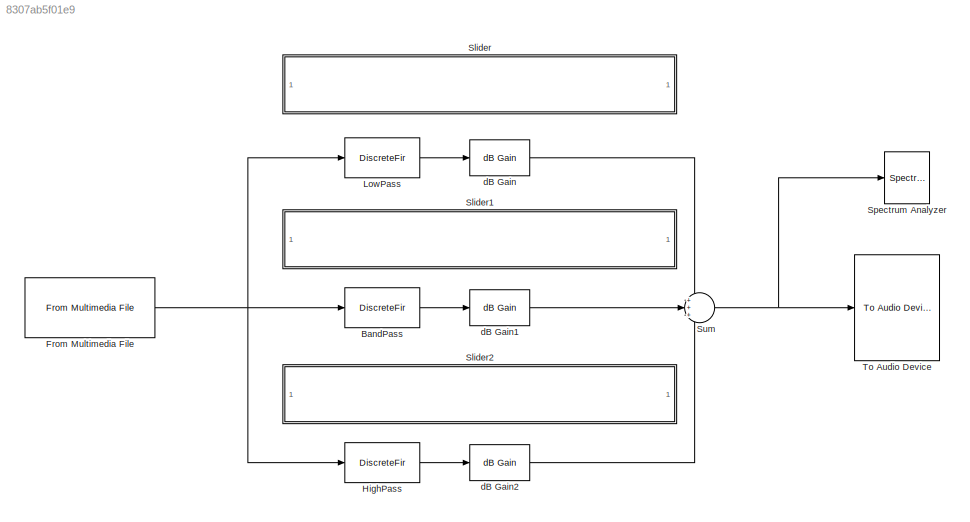
MODEL slx_8307ab5f01e9
KIND model
CONFIG AbsTol = auto
CONFIG EnableMultiTasking = on
CONFIG FixedStep = auto
CONFIG MaxStep = auto
CONFIG MinStep = auto
CONFIG RelTol = 1e-3
CONFIG SampleTimeConstraint = Unconstrained
CONFIG Solver = VariableStepAuto
CONFIG SolverName = VariableStepAuto
CONFIG StartTime = 0.0
CONFIG StopTime = 100
BLOCK [DiscreteFir] BandPass
  Coefficients = [9.37919605679821675e-05 0.00122577457123756095 0.0023477408870096173 -0.000190033516068428701 -0.00577044623843056981 -0.00566426578724808869 0.00392332904798554753 0.0107525622050162351 0.00360292116357024527 -0.00719919819439160912 -0.00619649841717446245 0.000695425690893493515 0.000126647486629076901 -0.00241150469167185702 0.00277693862756997261 0.00683533370085519319 0.00127553599663492688 ...<+2866ch>
  InputPortMap = u0
  InputProcessing = Columns as channels (frame based)
  OutputPortMap = o0
  Ports = [1, 1]
  Tag = BlockMethodSubSystem
BLOCK [Reference] From Multimedia File  REF=dspvision/From Multimedia File
  Ports = [0, 1]
  SourceBlock = dspvision/From Multimedia File
  SourceType = From Multimedia File
BLOCK [DiscreteFir] HighPass
  Coefficients = [0.000363016216841819533 -0.00195981077731224645 0.00484813578231365651 -0.00744837263883381222 0.0070667414575812269 -0.00288653869427886933 -0.0021992300521405969 0.00382032545055593139 -0.000965474604549394289 -0.00250267948620643259 0.00230699742032925608 0.00092486009195951401 -0.0025947338180712788 0.000453352272456172009 0.00227212193478957278 -0.00154150469184927597 -0.00154606233090527818...<+3149ch>
  InputPortMap = u0
  InputProcessing = Columns as channels (frame based)
  OutputPortMap = o0
  Ports = [1, 1]
  Tag = BlockMethodSubSystem
BLOCK [DiscreteFir] LowPass
  Coefficients = [-1.63357231008043167e-05 -0.000274947116561084456 -0.000689930331549650747 -0.00140422332356177743 -0.00239963287317427687 -0.00359041072849649277 -0.0047918917501154467 -0.00574345388340303728 -0.0061636096514144454 -0.00582981492778883621 -0.00466165498665458648 -0.00277934452327974939 -0.000511367156864577844 0.00166270237391899175 0.00322850607910409428 0.00378462896482213967 0.00317799134330...<+2880ch>
  InputPortMap = u0
  InputProcessing = Columns as channels (frame based)
  OutputPortMap = o0
  Ports = [1, 1]
  Tag = BlockMethodSubSystem
BLOCK [SubSystem] Slider
  DialogController = hmiCreateDDGDialog
  IsWebBlock = on
  MaskHideContents = on
  Ports = []
  RequestExecContextInheritance = off
  Variant = off
BLOCK [SubSystem] Slider1
  DialogController = hmiCreateDDGDialog
  IsWebBlock = on
  MaskHideContents = on
  Ports = []
  RequestExecContextInheritance = off
  Variant = off
BLOCK [SubSystem] Slider2
  DialogController = hmiCreateDDGDialog
  IsWebBlock = on
  MaskHideContents = on
  Ports = []
  RequestExecContextInheritance = off
  Variant = off
BLOCK [SpectrumAnalyzer] Spectrum Analyzer
  NumInputPorts = 1
  Ports = [1]
  ScopeSpecificationString = spbscopes.SpectrumAnalyzerBlockCfg('CurrentConfiguration', extmgr.ConfigurationSet(extmgr.Configuration('Core','General UI',true),extmgr.Configuration('Core','Source UI',true),extmgr.Configuration('Sources','WiredSimulink',true),extmgr.Configuration('Visuals','Spectrum',true,'AxesProperties',struct('Color',[0 0 0],'XColor',[0.686274509803922 0.686274509803922 0.686274509803922],'YColor',[0.6862745...<+1186ch>
BLOCK [Sum] Sum
  IconShape = round
  InputSameDT = off
  Inputs = +++
  OutDataTypeStr = Inherit: Inherit via internal rule
  Ports = [3, 1]
  SaturateOnIntegerOverflow = off
BLOCK [Reference] To Audio Device  REF=dspobslib/To Audio
Device
  Ports = [1]
  SourceBlock = dspobslib/To Audio\nDevice
  SourceType = To Audio Device
BLOCK [Reference] dB Gain  REF=dspmathops/dB Gain
  Ports = [1, 1]
  SourceBlock = dspmathops/dB Gain
  SourceType = dB Gain
BLOCK [Reference] dB Gain1  REF=dspmathops/dB Gain
  Ports = [1, 1]
  SourceBlock = dspmathops/dB Gain
  SourceType = dB Gain
BLOCK [Reference] dB Gain2  REF=dspmathops/dB Gain
  Ports = [1, 1]
  SourceBlock = dspmathops/dB Gain
  SourceType = dB Gain
LINE BandPass:1 -> dB Gain1:1
NET From Multimedia File:1 -> BandPass:1, HighPass:1, LowPass:1
LINE HighPass:1 -> dB Gain2:1
LINE LowPass:1 -> dB Gain:1
NET Sum:1 -> Spectrum Analyzer:1, To Audio Device:1
LINE dB Gain1:1 -> Sum:2
LINE dB Gain2:1 -> Sum:3
LINE dB Gain:1 -> Sum:1
note: NET lines group one-source signal fan-out (src -> all destinations, sorted); 1:1 wires keep LINE
